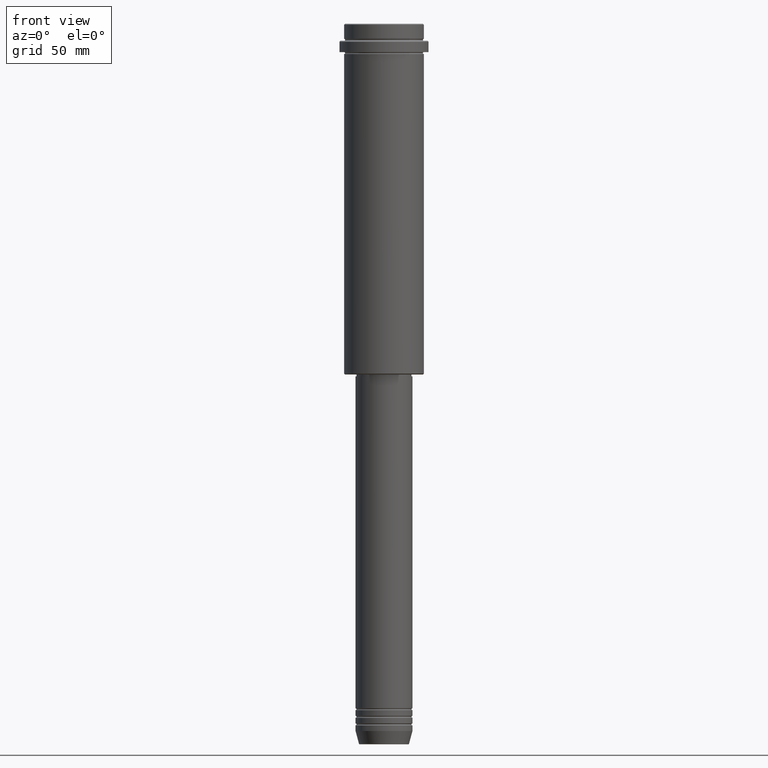
[diagram: clean part render]
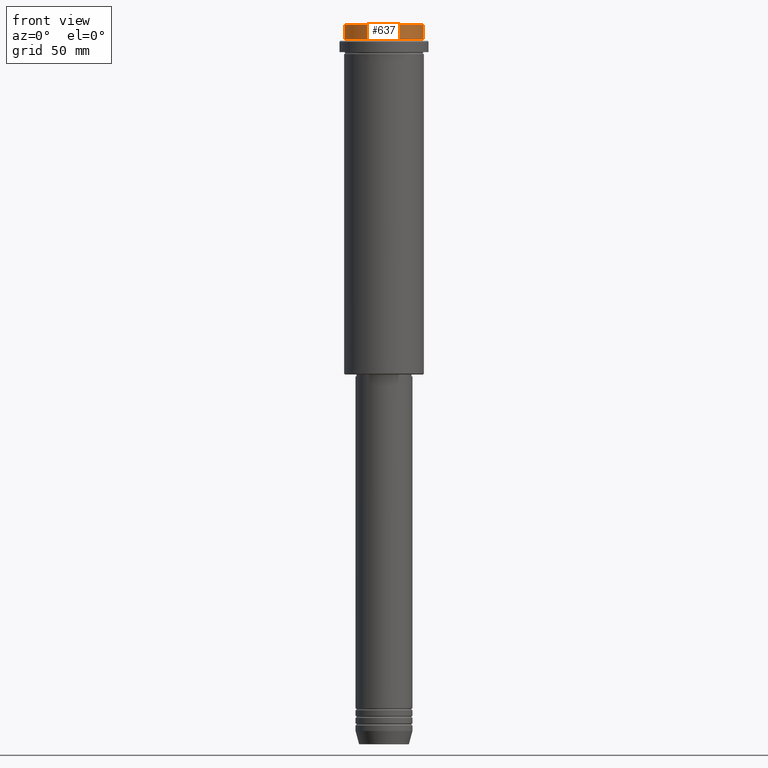
[diagram: same view with one face highlighted and labeled with its STEP entity id]
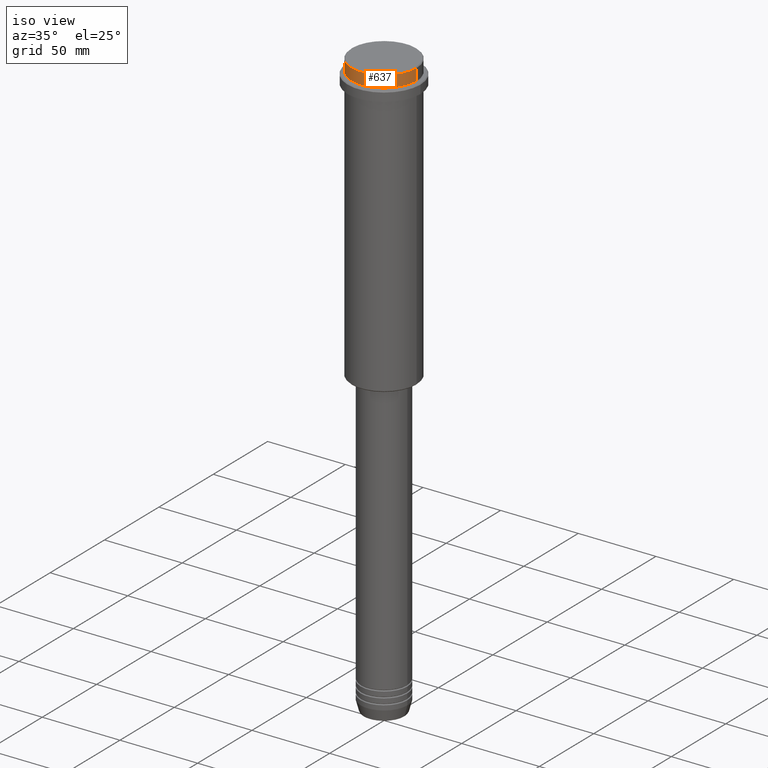
[diagram: same view with one face highlighted and labeled with its STEP entity id]
A machine part, front view. The second image highlights one B-rep face of the part: STEP entity #637.
A second angle (iso view) of the same face is appended — the face is thin or edge-on in the first view.
In plain terms, the highlighted cylindrical surface (partial cylindrical patch) has radius 21 mm, axis along (-0, -0, 1).
Its self-contained STEP definition (entity closure, byte-faithful):
#10 = VECTOR ( 'NONE', #687, 1000.000000000000000 ) ;
#21 = EDGE_CURVE ( 'NONE', #1001, #409, #712, .T. ) ;
#84 = CARTESIAN_POINT ( 'NONE',  ( -20.99999999999999645, 2.571758278209441267E-15, 0.000000000000000000 ) ) ;
#105 = CARTESIAN_POINT ( 'NONE',  ( 20.99999999999999645, 0.000000000000000000, -0.4999999999999796274 ) ) ;
#121 = ORIENTED_EDGE ( 'NONE', *, *, #765, .T. ) ;
#123 = CARTESIAN_POINT ( 'NONE',  ( 20.99999999999999645, 0.000000000000000000, -7.999999999999998224 ) ) ;
#195 = CARTESIAN_POINT ( 'NONE',  ( -20.99999999999999645, 2.571758278209441267E-15, -0.4999999999999796274 ) ) ;
#223 = DIRECTION ( 'NONE',  ( -0.000000000000000000, -0.000000000000000000, 1.000000000000000000 ) ) ;
#284 = CARTESIAN_POINT ( 'NONE',  ( 0.000000000000000000, 0.000000000000000000, 0.000000000000000000 ) ) ;
#290 = DIRECTION ( 'NONE',  ( -0.000000000000000000, -0.000000000000000000, 1.000000000000000000 ) ) ;
#307 = CARTESIAN_POINT ( 'NONE',  ( 0.000000000000000000, 0.000000000000000000, -7.999999999999998224 ) ) ;
#332 = AXIS2_PLACEMENT_3D ( 'NONE', #307, #223, #1197 ) ;
#409 = VERTEX_POINT ( 'NONE', #195 ) ;
#457 = DIRECTION ( 'NONE',  ( 0.000000000000000000, 0.000000000000000000, -1.000000000000000000 ) ) ;
#497 = AXIS2_PLACEMENT_3D ( 'NONE', #560, #457, #812 ) ;
#545 = LINE ( 'NONE', #786, #10 ) ;
#560 = CARTESIAN_POINT ( 'NONE',  ( 0.000000000000000000, 0.000000000000000000, -0.4999999999999796274 ) ) ;
#566 = CIRCLE ( 'NONE', #497, 20.99999999999999645 ) ;
#594 = ORIENTED_EDGE ( 'NONE', *, *, #662, .T. ) ;
#637 = ADVANCED_FACE ( 'NONE', ( #1275 ), #1281, .T. ) ;
#662 = EDGE_CURVE ( 'NONE', #1001, #987, #1086, .T. ) ;
#668 = ORIENTED_EDGE ( 'NONE', *, *, #1336, .T. ) ;
#687 = DIRECTION ( 'NONE',  ( -0.000000000000000000, -0.000000000000000000, 1.000000000000000000 ) ) ;
#692 = CARTESIAN_POINT ( 'NONE',  ( -20.99999999999999645, 2.571758278209441267E-15, -7.999999999999998224 ) ) ;
#712 = LINE ( 'NONE', #84, #1328 ) ;
#724 = ORIENTED_EDGE ( 'NONE', *, *, #21, .F. ) ;
#727 = VERTEX_POINT ( 'NONE', #105 ) ;
#765 = EDGE_CURVE ( 'NONE', #987, #727, #545, .T. ) ;
#786 = CARTESIAN_POINT ( 'NONE',  ( 20.99999999999999645, 0.000000000000000000, 0.000000000000000000 ) ) ;
#812 = DIRECTION ( 'NONE',  ( 1.000000000000000000, 0.000000000000000000, 0.000000000000000000 ) ) ;
#987 = VERTEX_POINT ( 'NONE', #123 ) ;
#1001 = VERTEX_POINT ( 'NONE', #692 ) ;
#1011 = EDGE_LOOP ( 'NONE', ( #724, #594, #121, #668 ) ) ;
#1086 = CIRCLE ( 'NONE', #332, 20.99999999999999645 ) ;
#1135 = AXIS2_PLACEMENT_3D ( 'NONE', #284, #290, #1162 ) ;
#1152 = DIRECTION ( 'NONE',  ( -0.000000000000000000, -0.000000000000000000, 1.000000000000000000 ) ) ;
#1162 = DIRECTION ( 'NONE',  ( 1.000000000000000000, 0.000000000000000000, 0.000000000000000000 ) ) ;
#1197 = DIRECTION ( 'NONE',  ( 1.000000000000000000, 0.000000000000000000, 0.000000000000000000 ) ) ;
#1275 = FACE_OUTER_BOUND ( 'NONE', #1011, .T. ) ;
#1281 = CYLINDRICAL_SURFACE ( 'NONE', #1135, 20.99999999999999645 ) ;
#1328 = VECTOR ( 'NONE', #1152, 1000.000000000000000 ) ;
#1336 = EDGE_CURVE ( 'NONE', #727, #409, #566, .T. ) ;